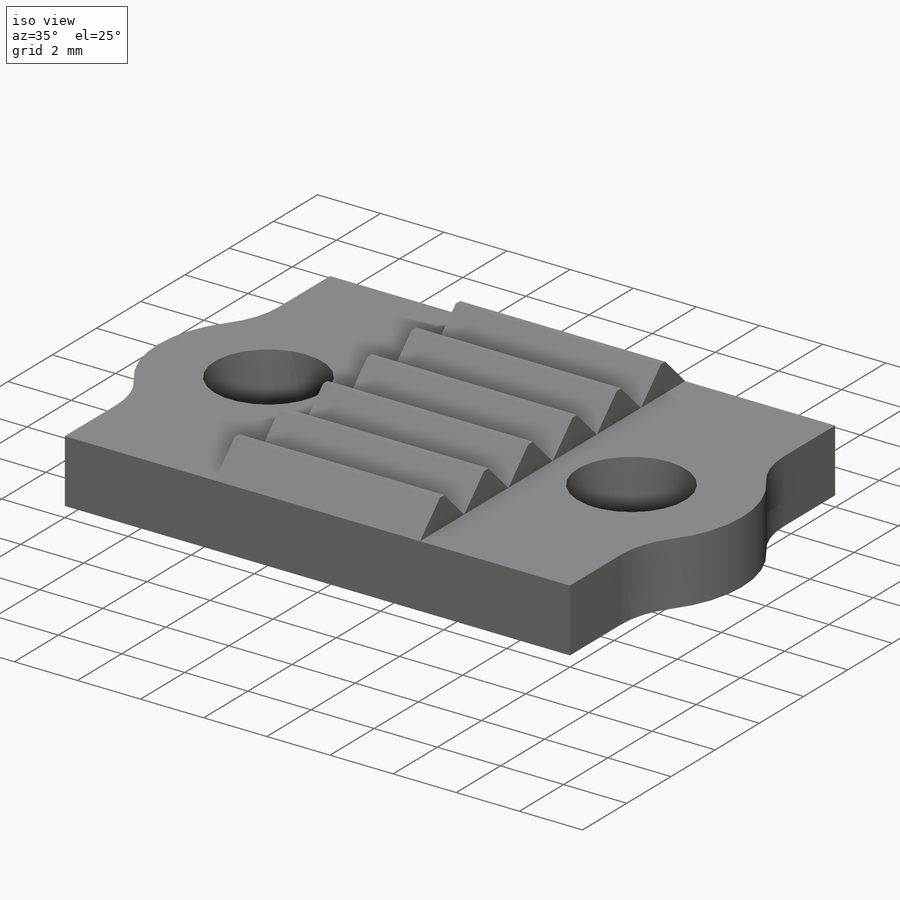
[diagram: iso view]
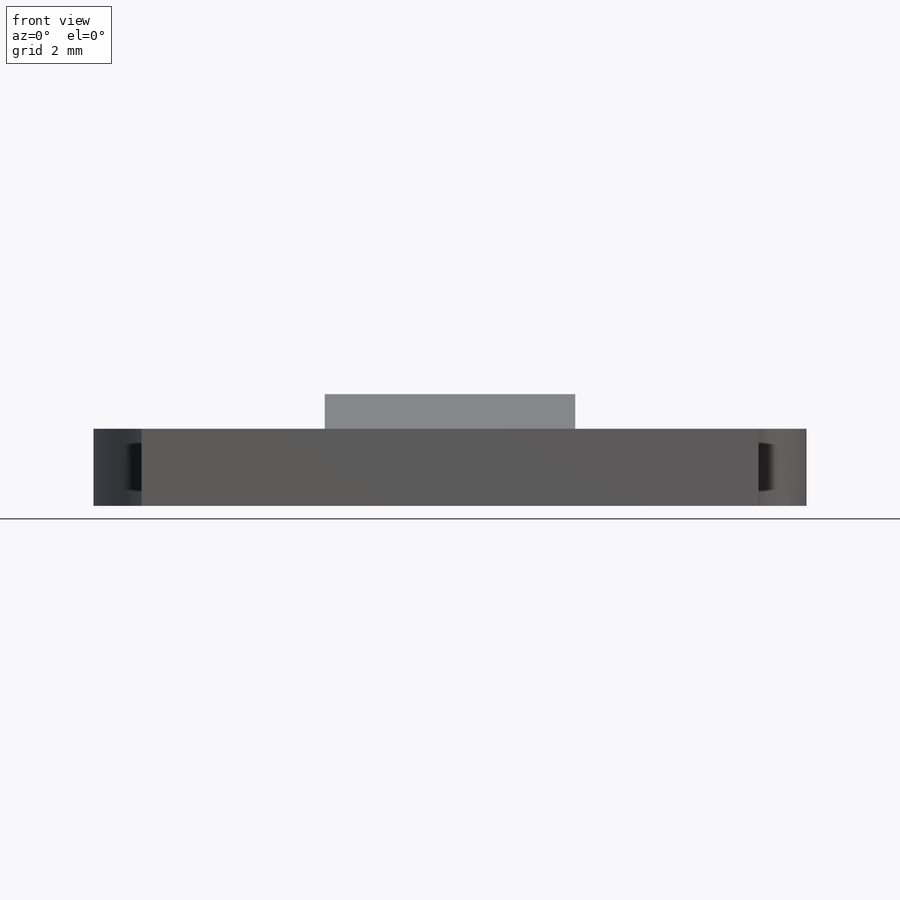
[diagram: front view]
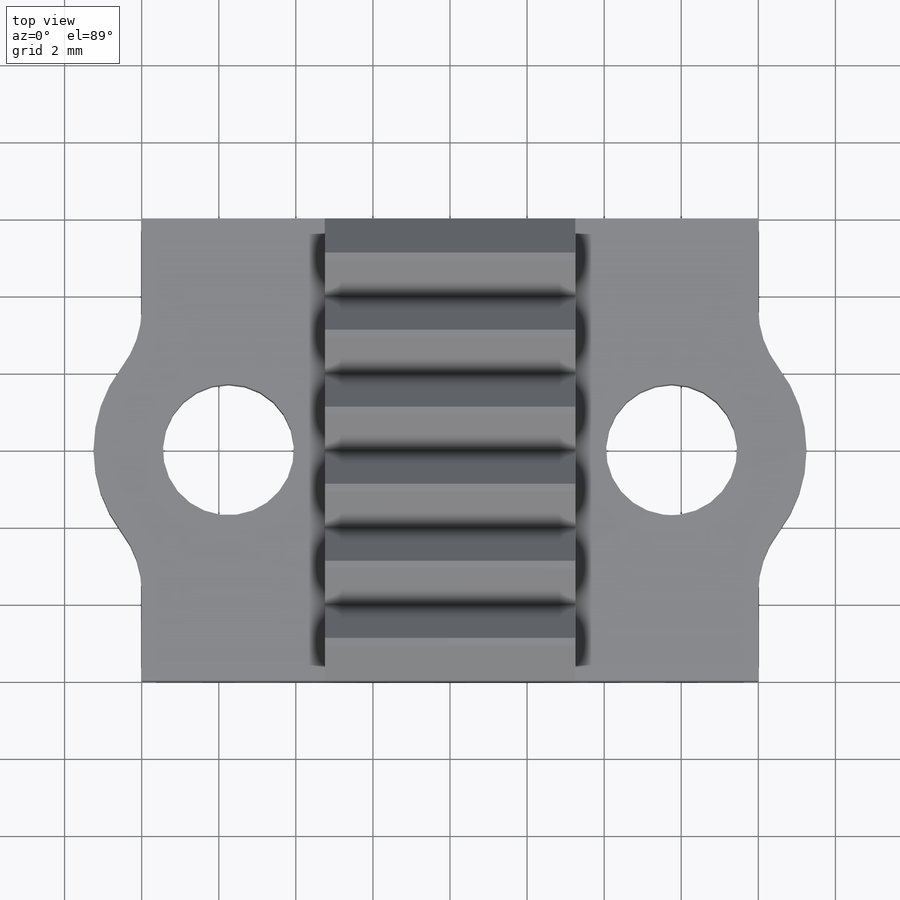
[diagram: top view]
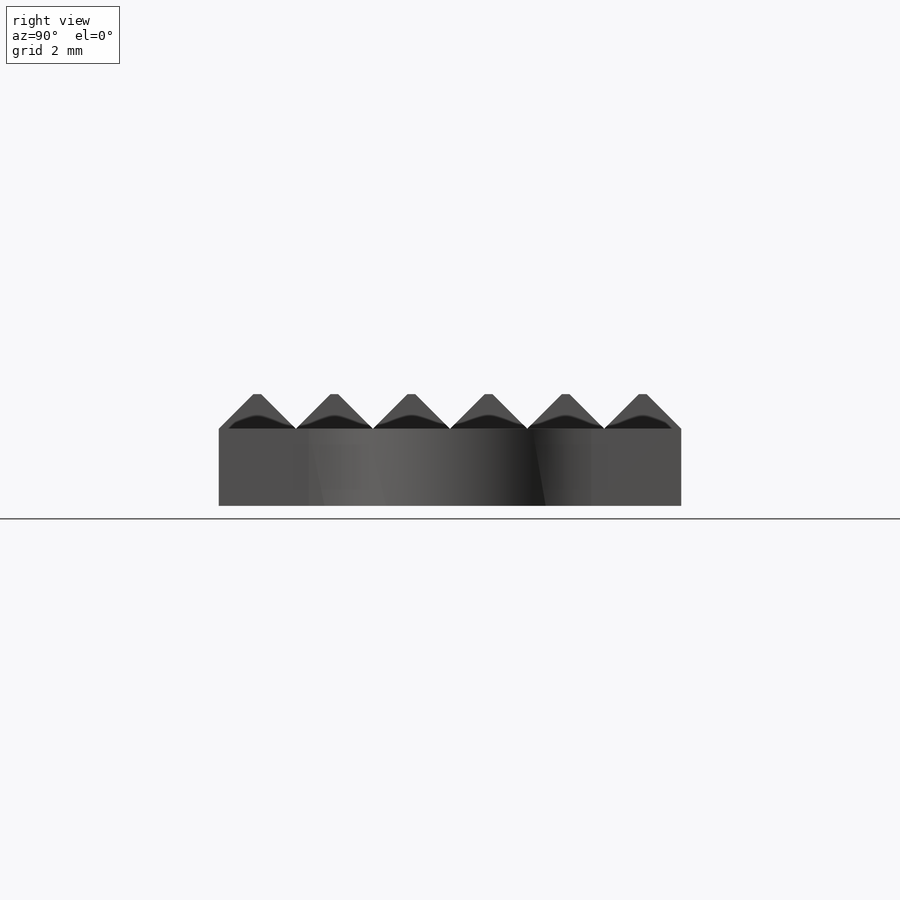
[diagram: right view]
SOLIDWORKS PART (.sldprt)
format: sldprt  version: not decoded by parser v0  size: 197,120 bytes
history: native  units: mm
features: plane x4, sketch x3, extrude x2, material x1, pattern_linear x1 (+8 scaffold rows collapsed)
feature tree (19):
  scaffold x8  (default folders/planes/origin — collapsed)
  material  "Material <sin especificar>"
  plane  "Alzado"
  plane  "Planta"
  plane  "Vista lateral"
  sketch  "Croquis1"  dims[c1.D1=3.4mm c1.D5=7.0mm c1.D6=5.0mm c1.D2=5.75mm c1.D3=12.0mm c1.D4=12.0mm c2.D5=~10.624331mm c2.D6=~10.624331mm c2.D3=8.0mm c2.D4=6.0mm]
  extrude  "Saliente-Extruir1"  Depth=2mm
  plane  "Plano1"  Offset=3.25mm
  sketch  "Croquis3"  dims[D1=3.5mm]
  sketch  "Croquis4"  dims[D1=1.0mm D2=1.0mm D3=0.9mm]
  extrude  "Saliente-Extruir2"  Depth=6.5mm
  pattern_linear  "MatrizL1"  Count1=6 Count2=1 Spacing1=2mm Spacing2=10mm
decode coverage: 6 of 6 modeling features carry decoded parameters
note: ~ marks probable driven/reference dimensions
note: suppression state not decoded; provenance and decode notes live in map.json
